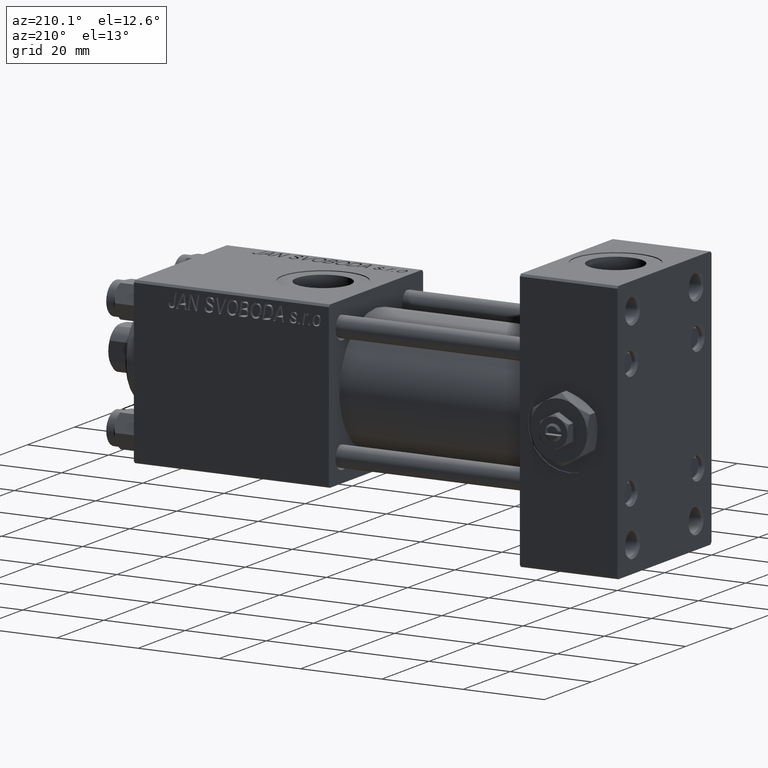
[diagram: clean part render]
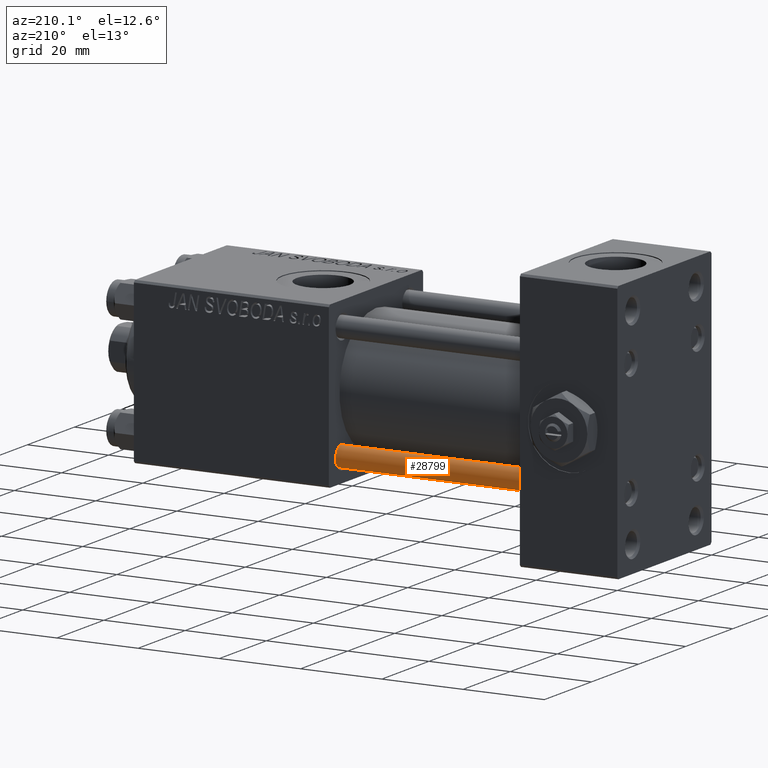
[diagram: same view with one face highlighted and labeled with its STEP entity id]
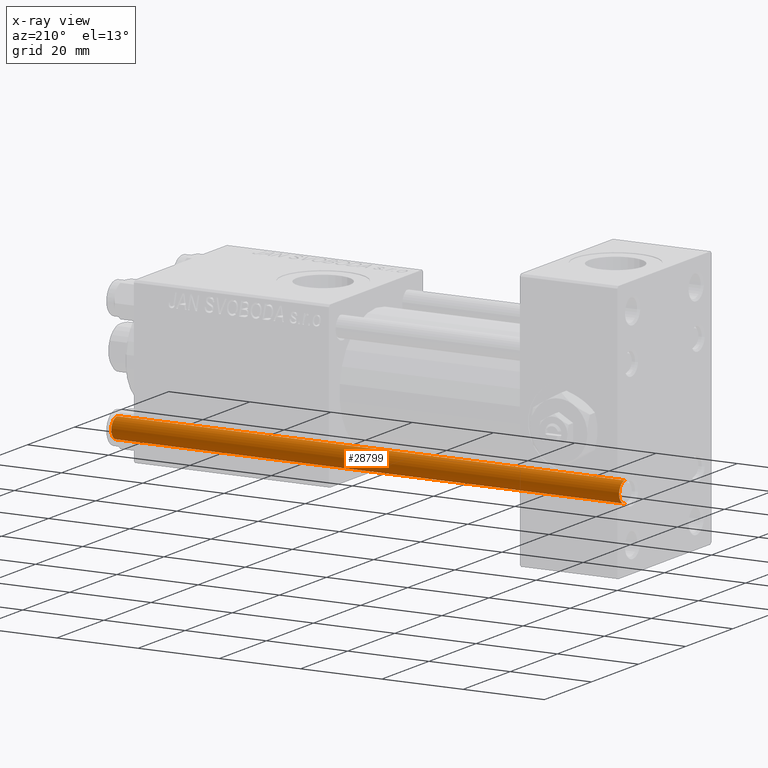
[diagram: x-ray of the same camera — body ghosted, the highlighted face saturated]
A machine part, auxiliary view. The second image highlights one B-rep face of the part: STEP entity #28799.
The next image is the same camera in x-ray: the body ghosted, the highlighted face saturated — about 0% of this face is hidden behind the body in this view.
In plain terms, the highlighted cylindrical surface (edge-blend (fillet) strip) has radius 2.5 mm, axis along (-1, 0, 0).
Its self-contained STEP definition (entity closure, byte-faithful):
#79 = VERTEX_POINT ( 'NONE', #35647 ) ;
#466 = LINE ( 'NONE', #4377, #47692 ) ;
#1995 = AXIS2_PLACEMENT_3D ( 'NONE', #8745, #36650, #5856 ) ;
#3464 = CARTESIAN_POINT ( 'NONE',  ( -2.500000000000000000, 0.000000000000000000, 125.5000000000000568 ) ) ;
#4172 = CARTESIAN_POINT ( 'NONE',  ( 2.500000000000000000, 3.061616997868383141E-16, 125.5000000000000568 ) ) ;
#4377 = CARTESIAN_POINT ( 'NONE',  ( -2.500000000000000000, 0.000000000000000000, 126.0000000000000000 ) ) ;
#5674 = EDGE_CURVE ( 'NONE', #79, #18141, #46190, .T. ) ;
#5856 = DIRECTION ( 'NONE',  ( 1.000000000000000000, 0.000000000000000000, 0.000000000000000000 ) ) ;
#6777 = CARTESIAN_POINT ( 'NONE',  ( 2.500000000000000000, 3.061616997868383141E-16, 126.0000000000000000 ) ) ;
#8649 = DIRECTION ( 'NONE',  ( 1.000000000000000000, 0.000000000000000000, 0.000000000000000000 ) ) ;
#8745 = CARTESIAN_POINT ( 'NONE',  ( 0.000000000000000000, 0.000000000000000000, 0.5000000000000004441 ) ) ;
#9414 = CARTESIAN_POINT ( 'NONE',  ( 2.500000000000000000, 3.061616997868383141E-16, 0.5000000000000004441 ) ) ;
#11101 = EDGE_CURVE ( 'NONE', #17400, #23415, #18847, .T. ) ;
#11538 = DIRECTION ( 'NONE',  ( 0.000000000000000000, 0.000000000000000000, -1.000000000000000000 ) ) ;
#15151 = DIRECTION ( 'NONE',  ( -0.000000000000000000, -0.000000000000000000, -1.000000000000000000 ) ) ;
#15510 = ORIENTED_EDGE ( 'NONE', *, *, #11101, .T. ) ;
#16574 = ORIENTED_EDGE ( 'NONE', *, *, #51063, .T. ) ;
#17400 = VERTEX_POINT ( 'NONE', #4172 ) ;
#18141 = VERTEX_POINT ( 'NONE', #9414 ) ;
#18641 = EDGE_LOOP ( 'NONE', ( #32418, #15510, #16574, #39999 ) ) ;
#18847 = CIRCLE ( 'NONE', #48057, 2.500000000000000000 ) ;
#19059 = FACE_OUTER_BOUND ( 'NONE', #18641, .T. ) ;
#23410 = DIRECTION ( 'NONE',  ( -0.000000000000000000, -0.000000000000000000, -1.000000000000000000 ) ) ;
#23415 = VERTEX_POINT ( 'NONE', #3464 ) ;
#23505 = CARTESIAN_POINT ( 'NONE',  ( 0.000000000000000000, 0.000000000000000000, 125.5000000000000568 ) ) ;
#28799 = ADVANCED_FACE ( 'NONE', ( #19059 ), #39172, .T. ) ;
#29460 = DIRECTION ( 'NONE',  ( -0.000000000000000000, -0.000000000000000000, -1.000000000000000000 ) ) ;
#31057 = DIRECTION ( 'NONE',  ( -1.000000000000000000, 0.000000000000000000, 0.000000000000000000 ) ) ;
#32418 = ORIENTED_EDGE ( 'NONE', *, *, #48654, .F. ) ;
#35647 = CARTESIAN_POINT ( 'NONE',  ( -2.500000000000000000, 0.000000000000000000, 0.5000000000000004441 ) ) ;
#36650 = DIRECTION ( 'NONE',  ( -0.000000000000000000, -0.000000000000000000, 1.000000000000000000 ) ) ;
#39172 = CYLINDRICAL_SURFACE ( 'NONE', #50459, 2.500000000000000000 ) ;
#39999 = ORIENTED_EDGE ( 'NONE', *, *, #5674, .T. ) ;
#42534 = LINE ( 'NONE', #6777, #48431 ) ;
#46190 = CIRCLE ( 'NONE', #1995, 2.500000000000000000 ) ;
#47692 = VECTOR ( 'NONE', #23410, 1000.000000000000000 ) ;
#48057 = AXIS2_PLACEMENT_3D ( 'NONE', #23505, #11538, #8649 ) ;
#48431 = VECTOR ( 'NONE', #29460, 1000.000000000000000 ) ;
#48654 = EDGE_CURVE ( 'NONE', #17400, #18141, #42534, .T. ) ;
#50459 = AXIS2_PLACEMENT_3D ( 'NONE', #50937, #15151, #31057 ) ;
#50937 = CARTESIAN_POINT ( 'NONE',  ( 0.000000000000000000, 0.000000000000000000, 126.0000000000000000 ) ) ;
#51063 = EDGE_CURVE ( 'NONE', #23415, #79, #466, .T. ) ;